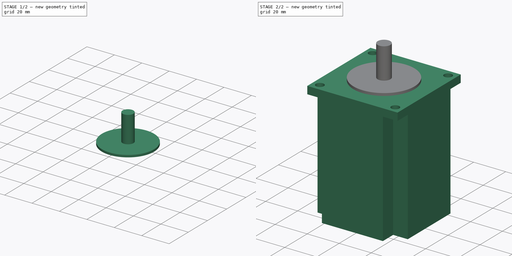
[diagram: build sequence overview — one tinted view per stage of 2, left to right]
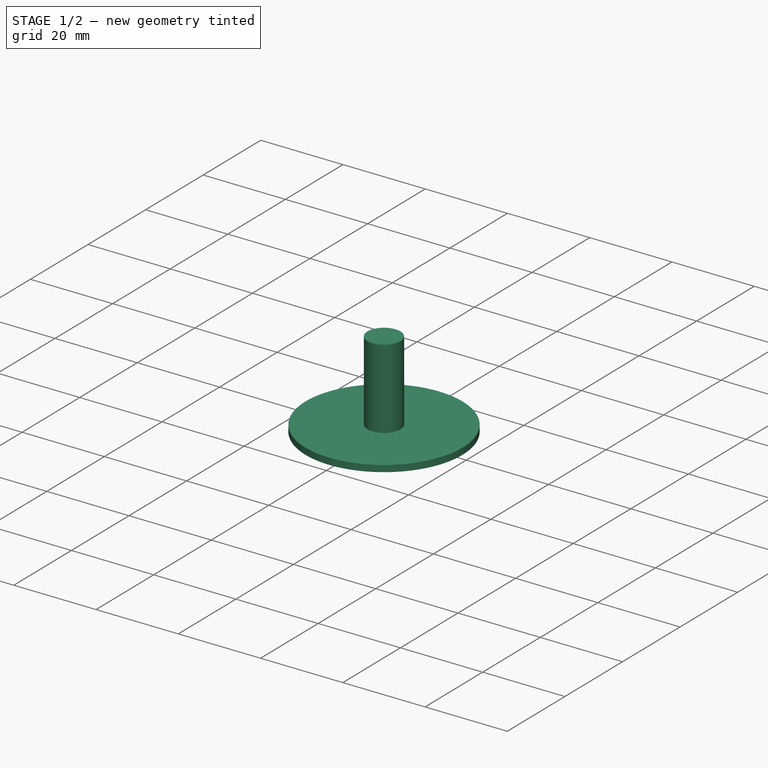
[diagram: stage 1 of 2 — iso view after this stage's code; geometry added in this stage tinted green]
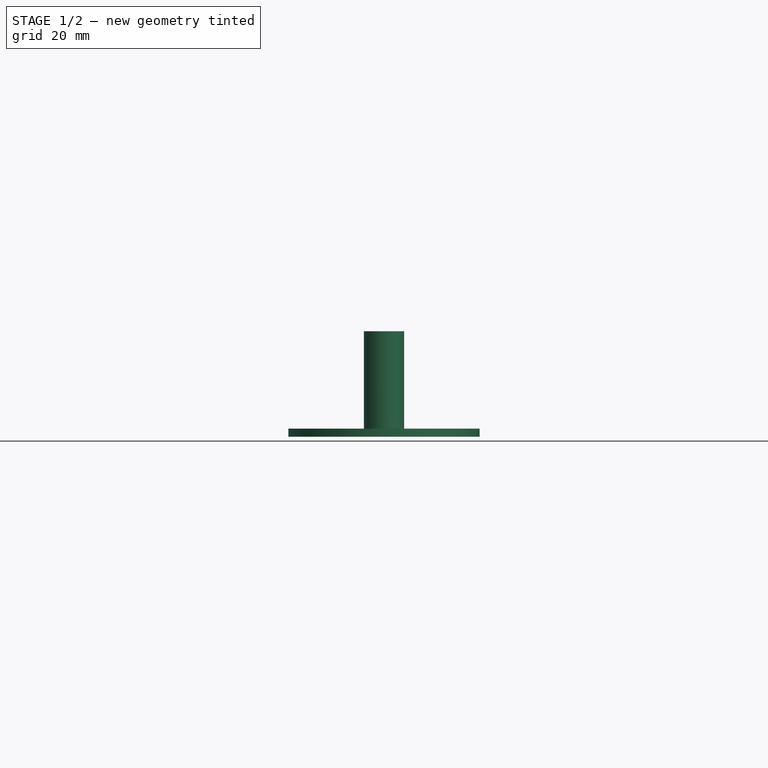
[diagram: stage 1 of 2 — front view after this stage's code; geometry added in this stage tinted green]
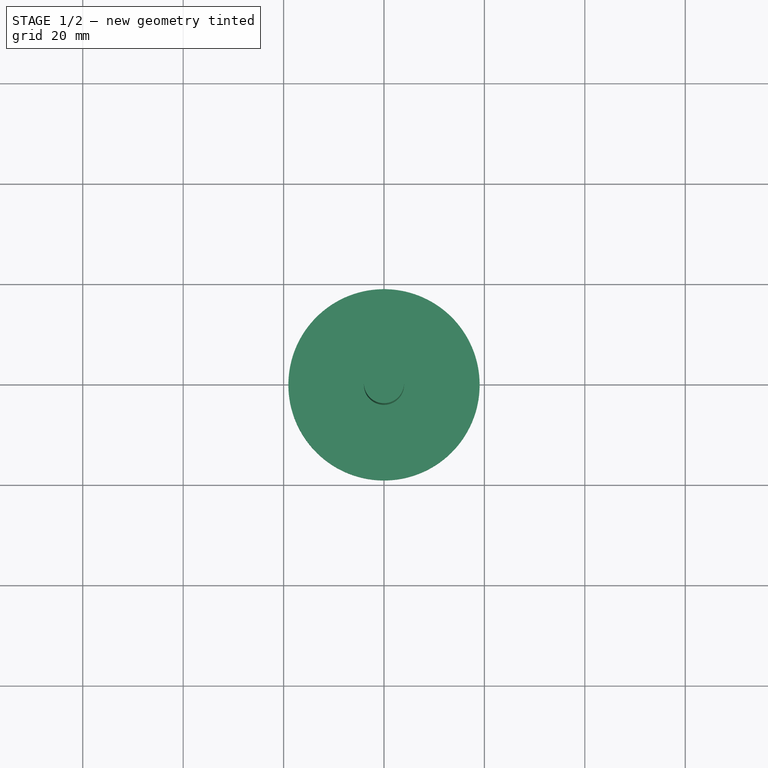
[diagram: stage 1 of 2 — top view after this stage's code; geometry added in this stage tinted green]
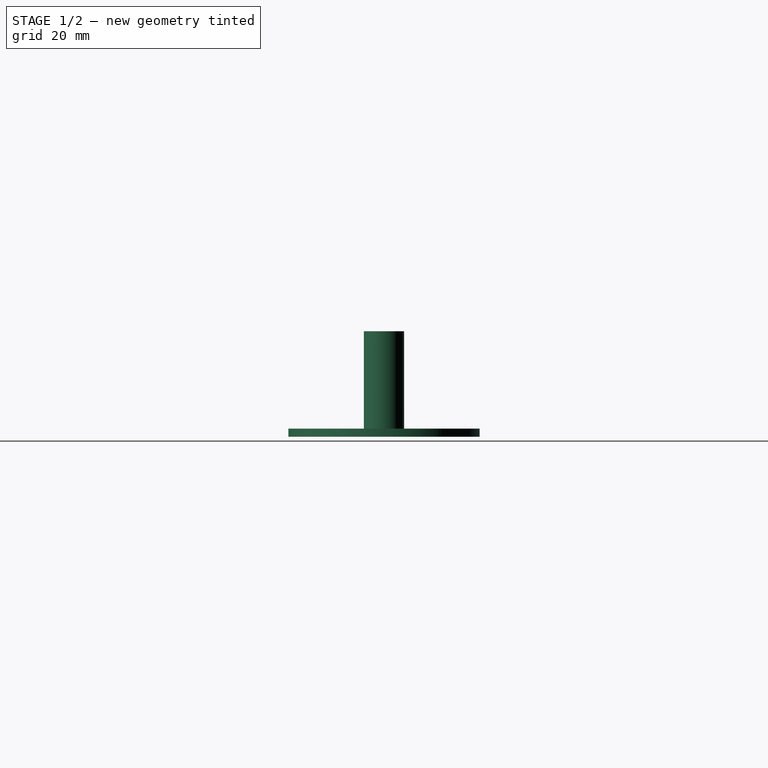
[diagram: stage 1 of 2 — right view after this stage's code; geometry added in this stage tinted green]
FCSTD DOCUMENT  (FreeCAD 1.0R38642 (Git))
Label: nema23
License: All rights reserved
LicenseURL: https://en.wikipedia.org/wiki/All_rights_reserved
objects: PartDesign::Pad×4, Spreadsheet::Sheet×1, Sketcher::SketchObject×1, PartDesign::Body×1
note: 15 computed .brp shape members not serialized (recipe doc carries the construction recipe); baked Part::Feature solids carry a one-line shape summary decoded from their .brp

FEATURE [Spreadsheet::Sheet] Spreadsheet
  cells = A1='width; B1(width)==56.4 mm; A2='attachment hole gap; B2(hole_gap)==47.14 mm; A3='body depth; B3(depth)==75 mm; A4='shaft length (from main body, not circle); B4(shaft_length)==21 mm; A5='face circle diameter; B5(face_diameter)==1.5 in; A6='face circle thickness; B6(face_thickness)==1.6 mm; A7='shaft diameter; B7(shaft_diameter)==0.315 in; A8='mounting hole diameter; B8(mounting_hole_diameter)==5 mm; A9='mounting plate thickness; B9(plate_thickness)==0.185 in; A10='cross body arm thickness; B10(arm_thickness)==1.5 in
FEATURE [Sketcher::SketchObject] Sketch
  ArcFitTolerance = 1e-06
  AttachmentSupport = -> [XY_Plane]
  FullyConstrained = true
  MakeInternals = false
  MapMode = 5
  expr: Constraints[13] = <<Spreadsheet>>.shaft_diameter
  expr: Constraints[1] = <<Spreadsheet>>.face_diameter
  expr: Constraints[2] = <<Spreadsheet>>.mounting_hole_diameter
  expr: Constraints[33] = (<<Spreadsheet>>.width - <<Spreadsheet>>.arm_thickness) / 2
  expr: Constraints[64] = <<Spreadsheet>>.width
  expr: Constraints[6] = <<Spreadsheet>>.hole_gap
  expr: Constraints[7] = <<Spreadsheet>>.hole_gap
  sketch-geometry (26):
    g0: Circle CenterX=0 CenterY=0 CenterZ=0 NormalX=0 NormalY=0 NormalZ=1 AngleXU=0 Radius=19.05
    g1: Circle CenterX=-23.57 CenterY=23.57 CenterZ=0 NormalX=0 NormalY=0 NormalZ=1 AngleXU=0 Radius=2.5
    g2: Circle CenterX=23.57 CenterY=23.57 CenterZ=0 NormalX=0 NormalY=0 NormalZ=1 AngleXU=0 Radius=2.5
    g3: Circle CenterX=23.57 CenterY=-23.57 CenterZ=0 NormalX=0 NormalY=0 NormalZ=1 AngleXU=0 Radius=2.5
    g4: Circle CenterX=-23.57 CenterY=-23.57 CenterZ=0 NormalX=0 NormalY=0 NormalZ=1 AngleXU=0 Radius=2.5
    g5: Circle CenterX=0 CenterY=0 CenterZ=0 NormalX=0 NormalY=0 NormalZ=1 AngleXU=0 Radius=4.0005
    g6: LineSegment StartX=-19.05 StartY=28.2 StartZ=0 EndX=-19.05 EndY=19.05 EndZ=0
    g7: LineSegment StartX=-19.05 StartY=19.05 StartZ=0 EndX=-28.2 EndY=19.05 EndZ=0
    g8: LineSegment StartX=-28.2 StartY=-19.05 StartZ=0 EndX=-19.05 EndY=-19.05 EndZ=0
    g9: LineSegment StartX=-19.05 StartY=-19.05 StartZ=0 EndX=-19.05 EndY=-28.2 EndZ=0
    g10: LineSegment StartX=19.05 StartY=-28.2 StartZ=0 EndX=19.05 EndY=-19.05 EndZ=0
    g11: LineSegment StartX=19.05 StartY=-19.05 StartZ=0 EndX=28.2 EndY=-19.05 EndZ=0
    g12: LineSegment StartX=19.05 StartY=28.2 StartZ=0 EndX=19.05 EndY=19.05 EndZ=0
    g13: LineSegment StartX=19.05 StartY=19.05 StartZ=0 EndX=28.2 EndY=19.05 EndZ=0
    g14: LineSegment StartX=-28.2 StartY=19.05 StartZ=0 EndX=-28.2 EndY=-19.05 EndZ=0
    g15: LineSegment StartX=-19.05 StartY=-28.2 StartZ=0 EndX=19.05 EndY=-28.2 EndZ=0
    g16: LineSegment StartX=28.2 StartY=-19.05 StartZ=0 EndX=28.2 EndY=19.05 EndZ=0
    g17: LineSegment StartX=19.05 StartY=28.2 StartZ=0 EndX=-19.05 EndY=28.2 EndZ=0
    g18: LineSegment StartX=-28.2 StartY=19.05 StartZ=0 EndX=-28.2 EndY=28.2 EndZ=0
    g19: LineSegment StartX=-28.2 StartY=28.2 StartZ=0 EndX=-19.05 EndY=28.2 EndZ=0
    g20: LineSegment StartX=19.05 StartY=28.2 StartZ=0 EndX=28.2 EndY=28.2 EndZ=0
    g21: LineSegment StartX=28.2 StartY=28.2 StartZ=0 EndX=28.2 EndY=19.05 EndZ=0
    g22: LineSegment StartX=28.2 StartY=-19.05 StartZ=0 EndX=28.2 EndY=-28.2 EndZ=0
    g23: LineSegment StartX=28.2 StartY=-28.2 StartZ=0 EndX=19.05 EndY=-28.2 EndZ=0
    g24: LineSegment StartX=-19.05 StartY=-28.2 StartZ=0 EndX=-28.2 EndY=-28.2 EndZ=0
    g25: LineSegment StartX=-28.2 StartY=-28.2 StartZ=0 EndX=-28.2 EndY=-19.05 EndZ=0
  constraints (68):
    c: Coincident(g0,g-1)
    c: Diameter(g0) = 38.1
    c: Diameter(g1) = 5
    c: Equal(g1,g4)
    c: Equal(g1,g2)
    c: Equal(g1,g3)
    c: DistanceY(g4,g1) = 47.14
    c: DistanceX(g4,g3) = 47.14
    c: Horizontal(g3,g4)
    c: Vertical(g4,g1)
    c: Symmetric(g2,g1,g-2)
    c: Symmetric(g2,g3,g-1)
    c: Coincident(g5,g0)
    c: Diameter(g5) = 8.001
    c: Coincident(g7,g6)
    c: Coincident(g9,g8)
    c: Coincident(g13,g12)
    c: Vertical(g6)
    c: Vertical(g9)
    c: Vertical(g10)
    c: Vertical(g12)
    c: Horizontal(g7)
    c: Horizontal(g13)
    c: Horizontal(g11)
    c: Horizontal(g8)
    c: Coincident(g11,g10)
    c: Equal(g12,g6)
    c: Equal(g6,g7)
    c: Equal(g7,g13)
    c: Equal(g13,g11)
    c: Equal(g11,g10)
    c: Equal(g10,g9)
    c: Equal(g9,g8)
    c: Distance(g13,g13) = 9.15
    c: Coincident(g14,g7)
    c: Coincident(g14,g8)
    c: Vertical(g14)
    c: Coincident(g15,g9)
    c: Coincident(g15,g10)
    c: Horizontal(g15)
    c: Coincident(g16,g11)
    c: Coincident(g16,g13)
    c: Vertical(g16)
    c: Coincident(g17,g12)
    c: Coincident(g17,g6)
    c: Horizontal(g17)
    c: Coincident(g18,g7)
    c: Coincident(g19,g18)
    c: Coincident(g19,g6)
    c: Coincident(g20,g12)
    c: Coincident(g21,g20)
    c: Coincident(g21,g13)
    c: Coincident(g22,g11)
    c: Coincident(g23,g22)
    c: Coincident(g23,g10)
    c: Coincident(g24,g9)
    c: Horizontal(g24)
    c: Coincident(g25,g24)
    c: Coincident(g25,g8)
    c: Horizontal(g19)
    c: Horizontal(g23)
    c: Vertical(g25)
    c: Vertical(g21)
    c: Vertical(g22)
    c: Distance(g16,g14) = 56.4
    c: Equal(g14,g17)
    c: Symmetric(g18,g24,g-1)
    c: Symmetric(g18,g20,g-2)
FEATURE [PartDesign::Pad] Pad001  label="faceplate"
  Direction = (0,0,1)
  Length = 1.6
  Length2 = 10
  Profile = -> Sketch [Edge1]
  ReferenceAxis = -> Sketch [N_Axis]
  Refine = true
  Suppressed = false
  Type = 0
  expr: Length = <<Spreadsheet>>.face_thickness
FEATURE [PartDesign::Pad] Pad002  label="shaft"
  BaseFeature = -> Pad001
  Direction = (0,0,1)
  Length = 21
  Length2 = 10
  Profile = -> Sketch [Edge6]
  ReferenceAxis = -> Sketch [N_Axis]
  Refine = true
  Suppressed = false
  Type = 0
  expr: Length = <<Spreadsheet>>.shaft_length
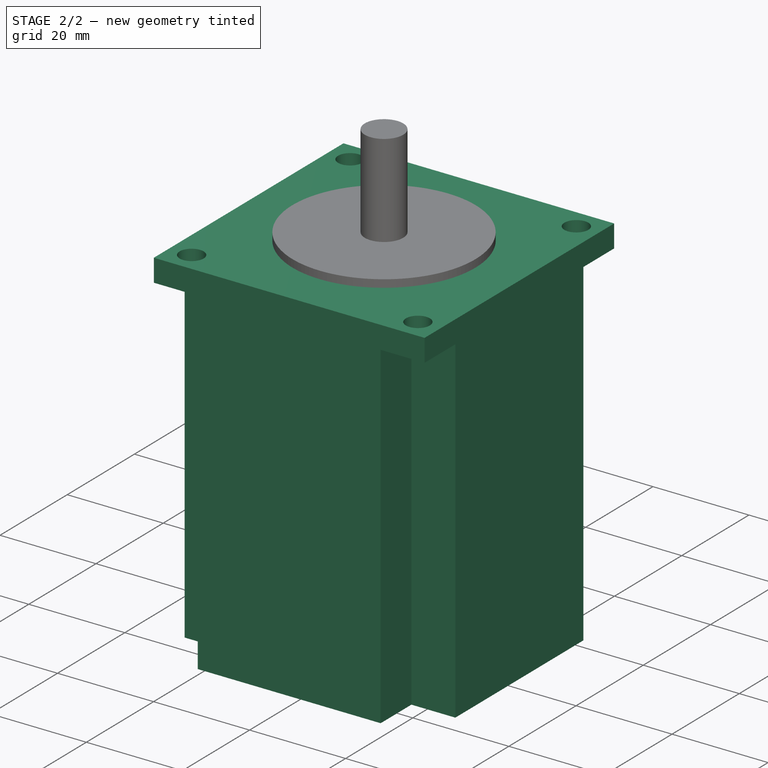
[diagram: stage 2 of 2 — iso view after this stage's code; geometry added in this stage tinted green]
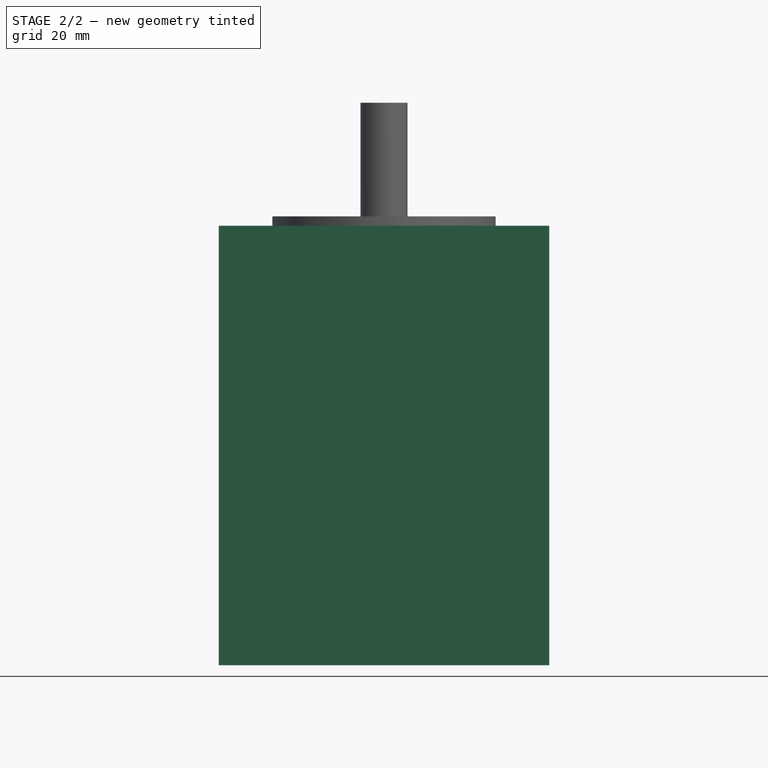
[diagram: stage 2 of 2 — front view after this stage's code; geometry added in this stage tinted green]
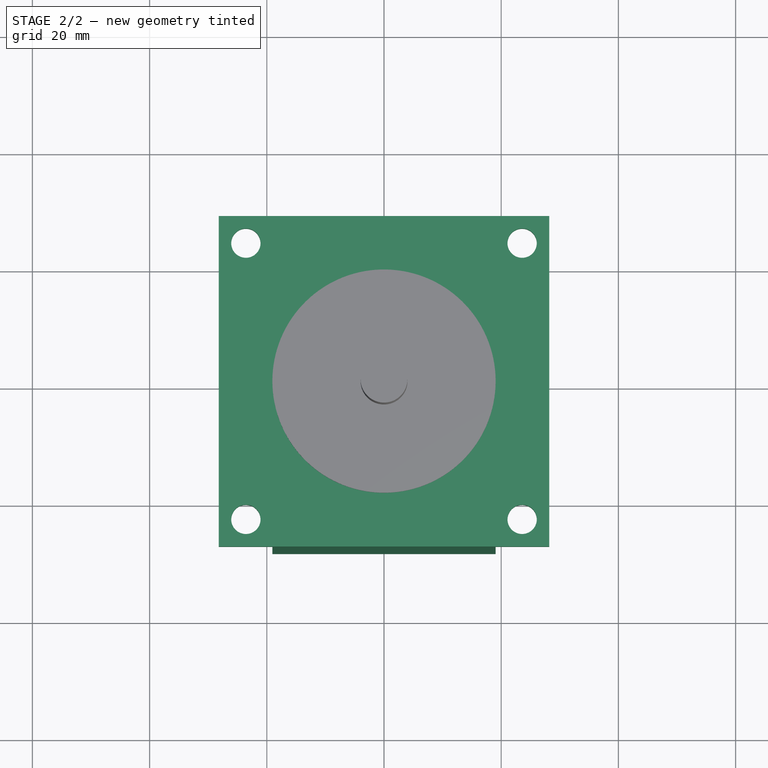
[diagram: stage 2 of 2 — top view after this stage's code; geometry added in this stage tinted green]
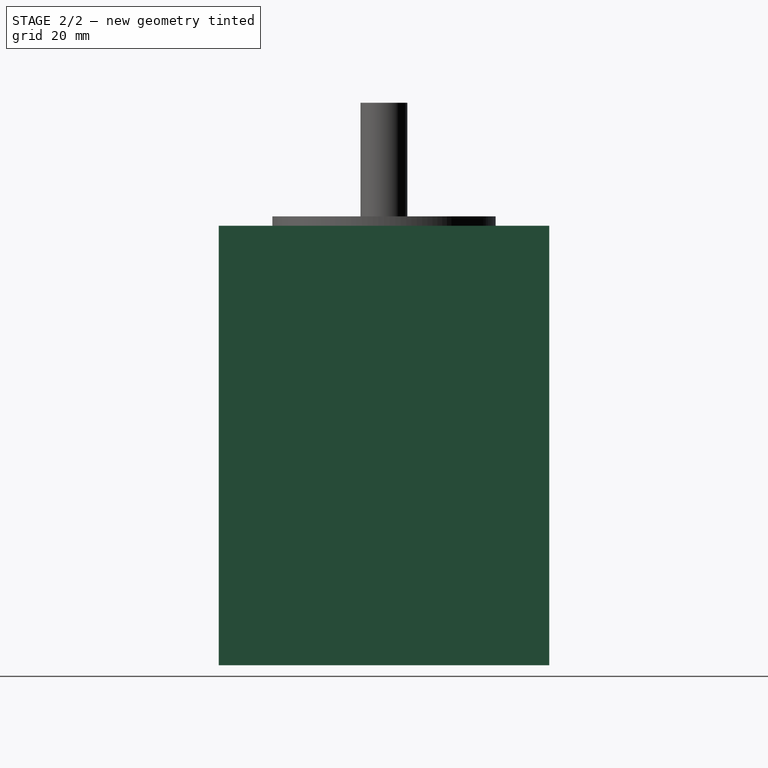
[diagram: stage 2 of 2 — right view after this stage's code; geometry added in this stage tinted green]
FEATURE [PartDesign::Pad] Pad  label="mounting_plate"
  BaseFeature = -> Pad002
  Direction = (0,0,1)
  Length = 4.699
  Length2 = 10
  Profile = -> Sketch [Edge22,Edge26,Edge25,Edge7,Edge2,Edge9,Edge8,Edge12,Edge14,Edge13,Edge5,Edge17,Edge20,Edge21,Edge4,Edge3]
  ReferenceAxis = -> Sketch [N_Axis]
  Refine = true
  Reversed = true
  Suppressed = false
  Type = 0
  expr: Length = <<Spreadsheet>>.plate_thickness
FEATURE [PartDesign::Pad] Pad003  label="body"
  BaseFeature = -> Pad
  Direction = (0,0,1)
  Length = 75
  Length2 = 10
  Profile = -> Sketch [Edge22,Edge19,Edge18,Edge17,Edge16,Edge15,Edge12,Edge11,Edge10,Edge7,Edge24,Edge23]
  ReferenceAxis = -> Sketch [N_Axis]
  Refine = true
  Reversed = true
  Suppressed = false
  Type = 0
  expr: Length = <<Spreadsheet>>.depth
FEATURE [PartDesign::Body] Body  label="nema23"
  AllowCompound = false
  Group = -> [Sketch,Pad001,Pad002,Pad,Pad003]
  Origin = -> Origin
  Tip = -> Pad003
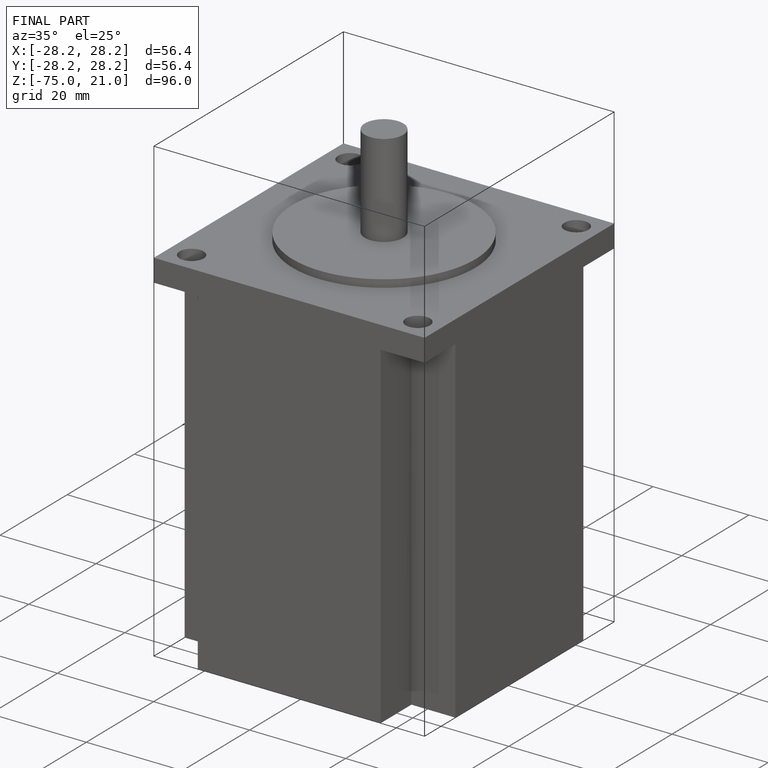
[diagram: finished part — iso view with bounding-box wireframe]
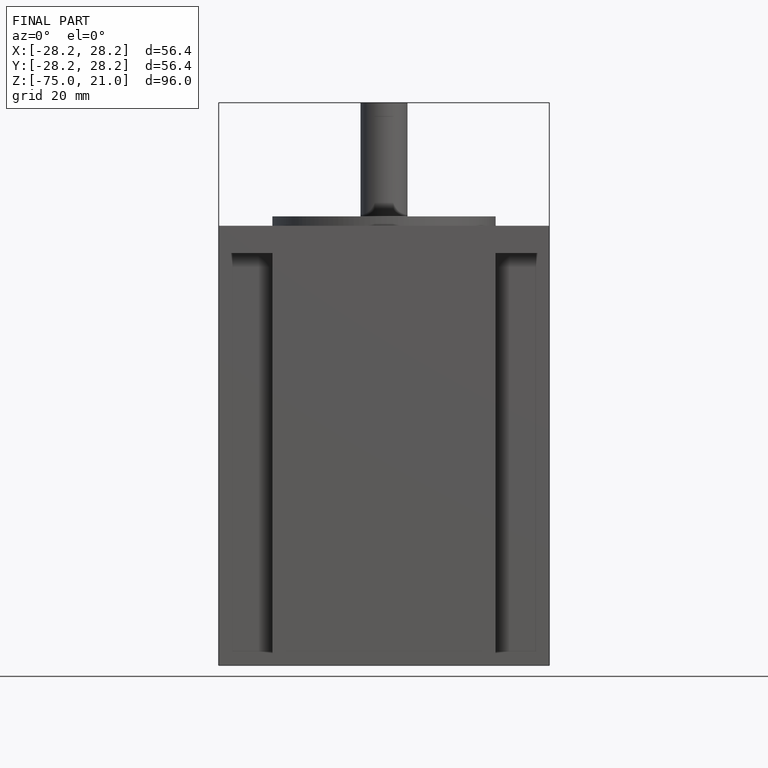
[diagram: finished part — front view with bounding-box wireframe]
